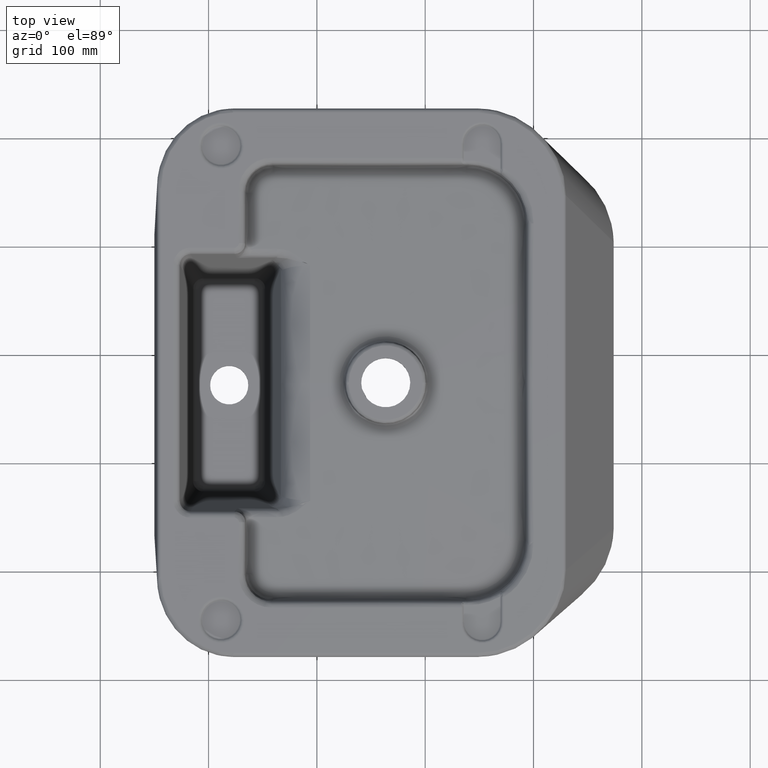
[diagram: clean part render]
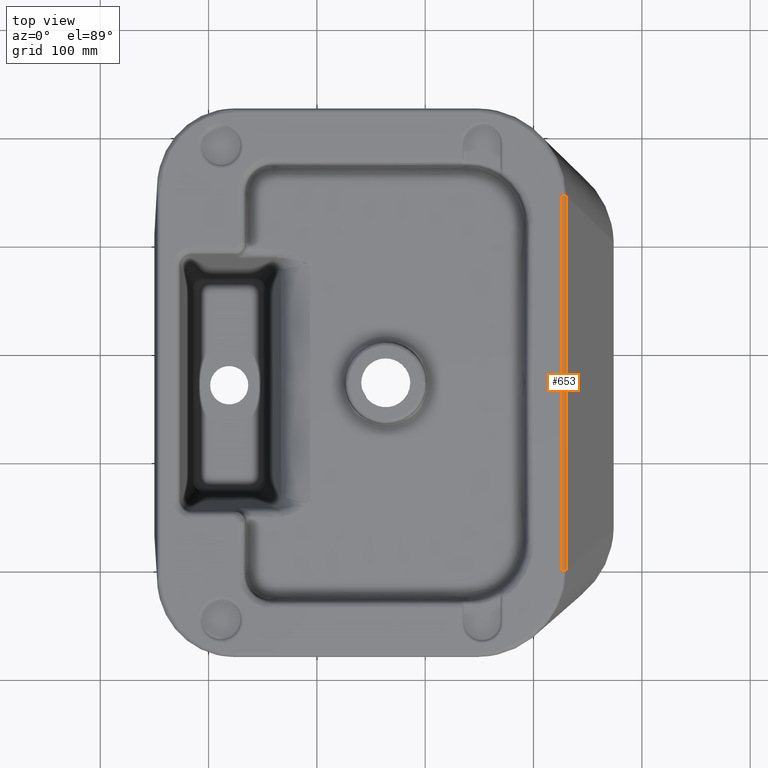
[diagram: same view with one face highlighted and labeled with its STEP entity id]
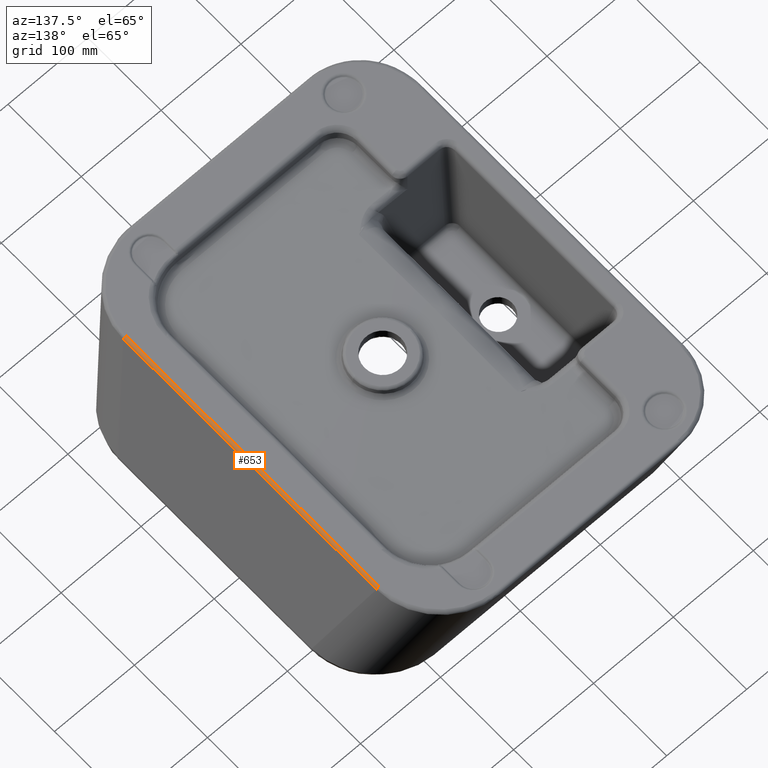
[diagram: same view with one face highlighted and labeled with its STEP entity id]
A machine part, top view. The second image highlights one B-rep face of the part: STEP entity #653.
A second angle (auxiliary view) of the same face is appended — the face is thin or edge-on in the first view.
In plain terms, the highlighted cylindrical surface (edge-blend (fillet) strip) has radius 3.78 mm, axis along (0, -1, 0).
Its self-contained STEP definition (entity closure, byte-faithful):
#229=CYLINDRICAL_SURFACE('',#3264,3.78);
#370=CIRCLE('',#3262,3.78);
#371=CIRCLE('',#3263,3.78);
#464=LINE('',#4280,#540);
#485=LINE('',#4917,#561);
#540=VECTOR('',#3439,1.);
#561=VECTOR('',#3510,1.);
#653=ADVANCED_FACE('',(#890),#229,.T.);
#890=FACE_OUTER_BOUND('',#1103,.T.);
#1103=EDGE_LOOP('',(#1522,#1523,#1524,#1525));
#1522=ORIENTED_EDGE('',*,*,#2600,.T.);
#1523=ORIENTED_EDGE('',*,*,#2685,.T.);
#1524=ORIENTED_EDGE('',*,*,#2523,.T.);
#1525=ORIENTED_EDGE('',*,*,#2686,.F.);
#2249=VERTEX_POINT('',#4281);
#2250=VERTEX_POINT('',#4282);
#2324=VERTEX_POINT('',#4916);
#2325=VERTEX_POINT('',#4918);
#2523=EDGE_CURVE('',#2249,#2250,#464,.T.);
#2600=EDGE_CURVE('',#2325,#2324,#485,.T.);
#2685=EDGE_CURVE('',#2324,#2249,#370,.T.);
#2686=EDGE_CURVE('',#2325,#2250,#371,.T.);
#3262=AXIS2_PLACEMENT_3D('',#5601,#3610,#3611);
#3263=AXIS2_PLACEMENT_3D('',#5602,#3612,#3613);
#3264=AXIS2_PLACEMENT_3D('',#5603,#3614,#3615);
#3439=DIRECTION('',(0.,-1.,0.));
#3510=DIRECTION('',(0.,1.,0.));
#3610=DIRECTION('',(0.,-1.,0.));
#3611=DIRECTION('',(0.,0.,-1.));
#3612=DIRECTION('',(0.,-1.,0.));
#3613=DIRECTION('',(0.,0.,-1.));
#3614=DIRECTION('',(0.,-1.,0.));
#3615=DIRECTION('',(0.,0.,1.));
#4280=CARTESIAN_POINT('',(426.298301408031,-1081.23403715853,225.02914521627));
#4281=CARTESIAN_POINT('',(426.298301408031,-654.796439766457,225.02914521627));
#4282=CARTESIAN_POINT('',(426.298301408031,-1000.67410883047,225.02914521627));
#4916=CARTESIAN_POINT('',(429.879392130771,-654.796439766457,222.459182089883));
#4917=CARTESIAN_POINT('',(429.879392130771,-1101.15459927474,222.459182089883));
#4918=CARTESIAN_POINT('',(429.879392130771,-1000.67410883047,222.459182089883));
#5601=CARTESIAN_POINT('',(426.298301408031,-654.796439766457,221.24914521627));
#5602=CARTESIAN_POINT('',(426.298301408031,-1000.67410883047,221.24914521627));
#5603=CARTESIAN_POINT('',(426.298301408031,-1081.23403715853,221.24914521627));